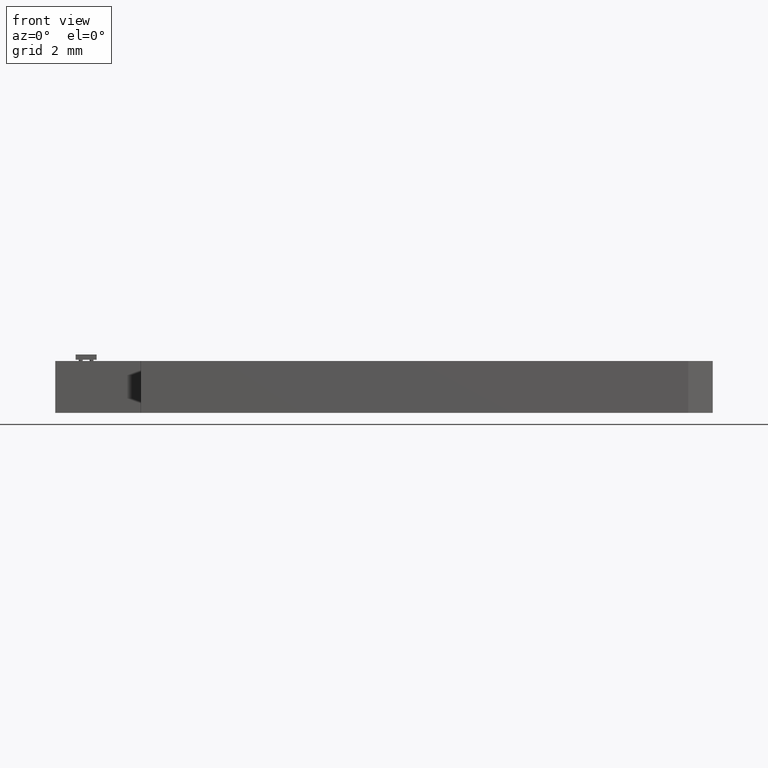
[diagram: clean part render]
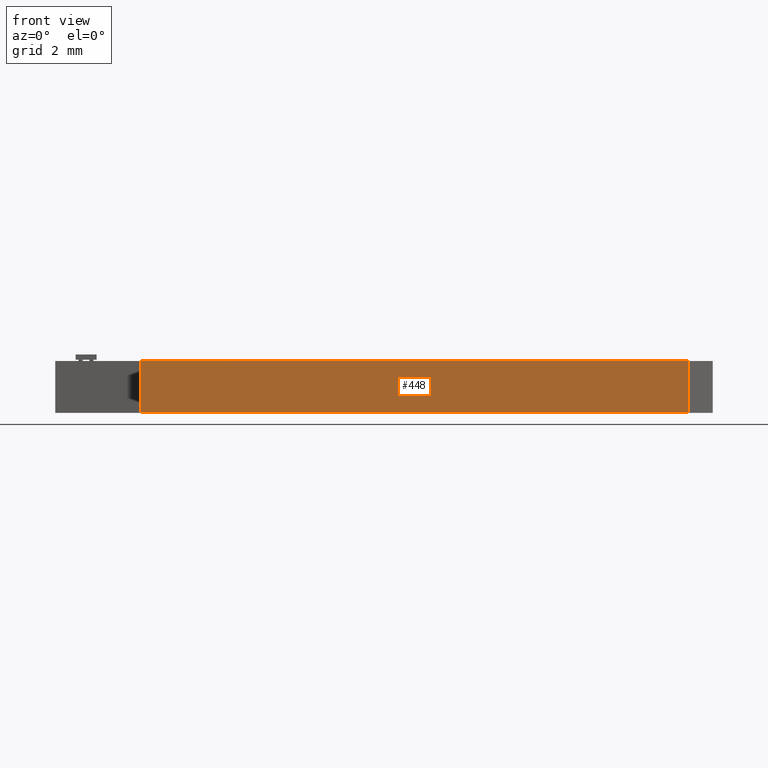
[diagram: same view with one face highlighted and labeled with its STEP entity id]
A machine part, front view. The second image highlights one B-rep face of the part: STEP entity #448.
In plain terms, the highlighted planar face has unit normal (0, -1, 0).
Its self-contained STEP definition (entity closure, byte-faithful):
#423 = VERTEX_POINT('',#424);
#424 = CARTESIAN_POINT('',(20.975181438121,-4.864109728219,
    1.600025400051));
#430 = EDGE_CURVE('',#431,#423,#433,.T.);
#431 = VERTEX_POINT('',#432);
#432 = CARTESIAN_POINT('',(20.975181438121,-4.864109728219,0.));
#433 = LINE('',#434,#435);
#434 = CARTESIAN_POINT('',(20.975181438121,-4.864109728219,0.));
#435 = VECTOR('',#436,1.);
#436 = DIRECTION('',(0.,0.,1.));
#448 = ADVANCED_FACE('',(#449),#474,.T.);
#449 = FACE_BOUND('',#450,.T.);
#450 = EDGE_LOOP('',(#451,#452,#460,#468));
#451 = ORIENTED_EDGE('',*,*,#430,.T.);
#452 = ORIENTED_EDGE('',*,*,#453,.T.);
#453 = EDGE_CURVE('',#423,#454,#456,.T.);
#454 = VERTEX_POINT('',#455);
#455 = CARTESIAN_POINT('',(4.076708153416,-4.864109728219,1.600025400051
    ));
#456 = LINE('',#457,#458);
#457 = CARTESIAN_POINT('',(20.975181438121,-4.864109728219,
    1.600025400051));
#458 = VECTOR('',#459,1.);
#459 = DIRECTION('',(-1.,0.,0.));
#460 = ORIENTED_EDGE('',*,*,#461,.F.);
#461 = EDGE_CURVE('',#462,#454,#464,.T.);
#462 = VERTEX_POINT('',#463);
#463 = CARTESIAN_POINT('',(4.076708153416,-4.864109728219,0.));
#464 = LINE('',#465,#466);
#465 = CARTESIAN_POINT('',(4.076708153416,-4.864109728219,0.));
#466 = VECTOR('',#467,1.);
#467 = DIRECTION('',(0.,0.,1.));
#468 = ORIENTED_EDGE('',*,*,#469,.F.);
#469 = EDGE_CURVE('',#431,#462,#470,.T.);
#470 = LINE('',#471,#472);
#471 = CARTESIAN_POINT('',(20.975181438121,-4.864109728219,0.));
#472 = VECTOR('',#473,1.);
#473 = DIRECTION('',(-1.,0.,0.));
#474 = PLANE('',#475);
#475 = AXIS2_PLACEMENT_3D('',#476,#477,#478);
#476 = CARTESIAN_POINT('',(20.975181438121,-4.864109728219,0.));
#477 = DIRECTION('',(0.,-1.,0.));
#478 = DIRECTION('',(-1.,0.,0.));